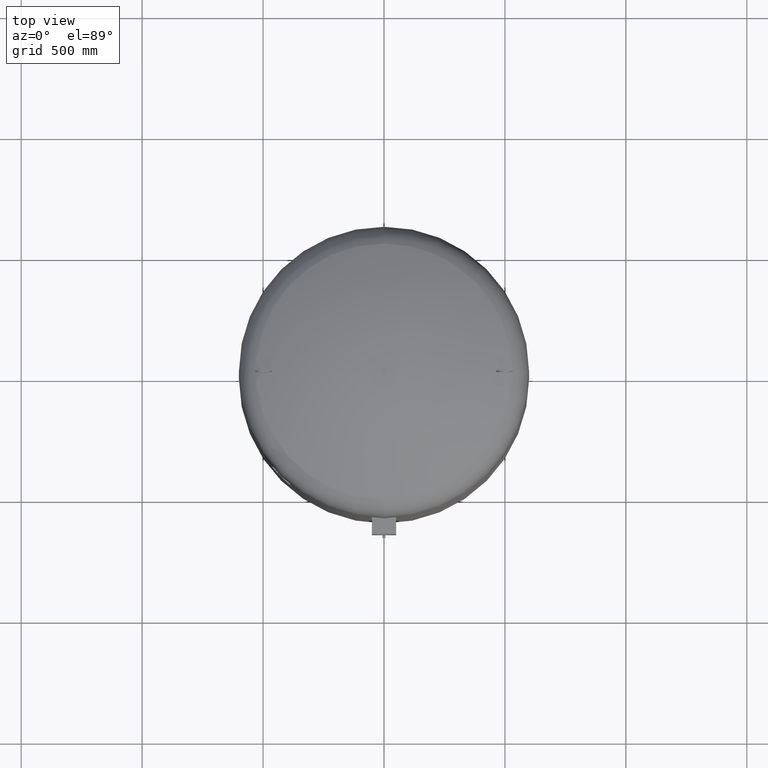
[diagram: clean part render]
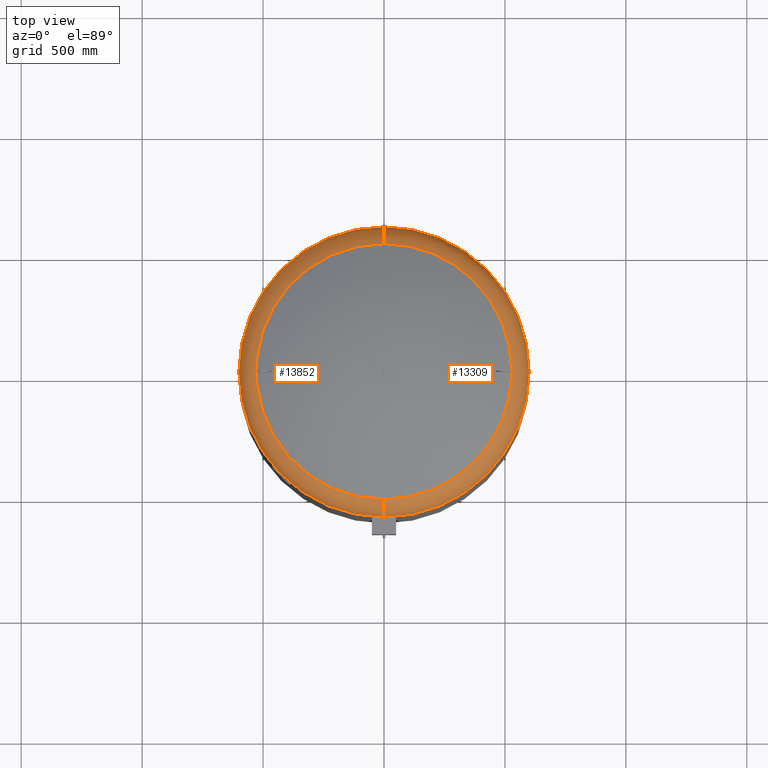
[diagram: same view with one multi-face feature highlighted, each face labeled with its STEP entity id]
A machine part, top view. The highlighted faces form ONE feature: a constant-radius fillet chain: 2 tangent blend faces with common blend radius 127 mm. The faces share edges in the B-rep.
Their STEP definitions:
[1] entity #13852 (Torus):
#13231=CARTESIAN_POINT('',(-599.999999999999890,3.010780E-014,2202.912457433727500));
#13232=VERTEX_POINT('',#13231);
#13239=CARTESIAN_POINT('',(1.156183E-013,600.0,2202.912457433727500));
#13240=VERTEX_POINT('',#13239);
#13241=CARTESIAN_POINT('',(6.604942E-015,-4.336858E-014,2202.912457433727500));
#13242=DIRECTION('',(0.0,0.0,-1.0));
#13243=DIRECTION('',(1.0,0.0,0.0));
#13244=AXIS2_PLACEMENT_3D('',#13241,#13242,#13243);
#13245=CIRCLE('',#13244,600.0);
#13246=EDGE_CURVE('',#13232,#13240,#13245,.T.);
#13263=CARTESIAN_POINT('',(4.214189E-014,-600.0,2202.912457433727500));
#13264=VERTEX_POINT('',#13263);
#13265=CARTESIAN_POINT('',(3.894773E-014,-528.621296296296240,2317.084570483804800));
#13266=VERTEX_POINT('',#13265);
#13267=CARTESIAN_POINT('',(4.214189E-014,-472.999999999999940,2202.912457433727500));
#13268=DIRECTION('',(-1.0,0.0,0.0));
#13269=DIRECTION('',(0.0,-1.0,0.0));
#13270=AXIS2_PLACEMENT_3D('',#13267,#13268,#13269);
#13271=CIRCLE('',#13270,127.000000000000010);
#13272=EDGE_CURVE('',#13264,#13266,#13271,.T.);
#13282=CARTESIAN_POINT('',(1.036830E-013,528.621296296296240,2317.084570483804800));
#13283=VERTEX_POINT('',#13282);
#13284=CARTESIAN_POINT('',(1.000658E-013,472.999999999999830,2202.912457433727500));
#13285=DIRECTION('',(1.0,0.0,0.0));
#13286=DIRECTION('',(0.0,1.0,0.0));
#13287=AXIS2_PLACEMENT_3D('',#13284,#13285,#13286);
#13288=CIRCLE('',#13287,127.000000000000010);
#13289=EDGE_CURVE('',#13240,#13283,#13288,.T.);
#13824=CARTESIAN_POINT('',(3.410787E-015,-2.239550E-014,2317.084570483804800));
#13825=DIRECTION('',(0.0,0.0,-1.0));
#13826=DIRECTION('',(1.0,0.0,0.0));
#13827=AXIS2_PLACEMENT_3D('',#13824,#13825,#13826);
#13828=CIRCLE('',#13827,528.621296296296240);
#13829=EDGE_CURVE('',#13266,#13283,#13828,.T.);
#13834=CARTESIAN_POINT('',(4.214189E-014,-4.336858E-014,2202.912457433727500));
#13835=DIRECTION('',(2.797667E-017,-1.836970E-016,-1.0));
#13836=DIRECTION('',(0.0,-1.0,0.0));
#13837=AXIS2_PLACEMENT_3D('',#13834,#13835,#13836);
#13838=TOROIDAL_SURFACE('',#13837,472.999999999999890,127.000000000000010);
#13839=ORIENTED_EDGE('',*,*,#13272,.T.);
#13840=ORIENTED_EDGE('',*,*,#13829,.T.);
#13841=ORIENTED_EDGE('',*,*,#13289,.F.);
#13842=ORIENTED_EDGE('',*,*,#13246,.F.);
#13843=CARTESIAN_POINT('',(6.604942E-015,-4.336858E-014,2202.912457433727500));
#13844=DIRECTION('',(0.0,0.0,-1.0));
#13845=DIRECTION('',(1.0,0.0,0.0));
#13846=AXIS2_PLACEMENT_3D('',#13843,#13844,#13845);
#13847=CIRCLE('',#13846,600.0);
#13848=EDGE_CURVE('',#13264,#13232,#13847,.T.);
#13849=ORIENTED_EDGE('',*,*,#13848,.F.);
#13850=EDGE_LOOP('',(#13839,#13840,#13841,#13842,#13849));
#13851=FACE_OUTER_BOUND('',#13850,.T.);
#13852=ADVANCED_FACE('',(#13851),#13838,.T.);
[2] entity #13309 (Torus):
#13214=CARTESIAN_POINT('',(600.0,-4.336858E-014,2202.912457433727900));
#13215=VERTEX_POINT('',#13214);
#13239=CARTESIAN_POINT('',(1.156183E-013,600.0,2202.912457433727500));
#13240=VERTEX_POINT('',#13239);
#13248=CARTESIAN_POINT('',(6.604942E-015,-4.336858E-014,2202.912457433727500));
#13249=DIRECTION('',(0.0,0.0,-1.0));
#13250=DIRECTION('',(1.0,0.0,0.0));
#13251=AXIS2_PLACEMENT_3D('',#13248,#13249,#13250);
#13252=CIRCLE('',#13251,600.0);
#13253=EDGE_CURVE('',#13240,#13215,#13252,.T.);
#13258=CARTESIAN_POINT('',(4.214189E-014,-4.336858E-014,2202.912457433727500));
#13259=DIRECTION('',(2.797667E-017,-1.836970E-016,-1.0));
#13260=DIRECTION('',(0.0,-1.0,0.0));
#13261=AXIS2_PLACEMENT_3D('',#13258,#13259,#13260);
#13262=TOROIDAL_SURFACE('',#13261,472.999999999999890,127.000000000000010);
#13263=CARTESIAN_POINT('',(4.214189E-014,-600.0,2202.912457433727500));
#13264=VERTEX_POINT('',#13263);
#13265=CARTESIAN_POINT('',(3.894773E-014,-528.621296296296240,2317.084570483804800));
#13266=VERTEX_POINT('',#13265);
#13267=CARTESIAN_POINT('',(4.214189E-014,-472.999999999999940,2202.912457433727500));
#13268=DIRECTION('',(-1.0,0.0,0.0));
#13269=DIRECTION('',(0.0,-1.0,0.0));
#13270=AXIS2_PLACEMENT_3D('',#13267,#13268,#13269);
#13271=CIRCLE('',#13270,127.000000000000010);
#13272=EDGE_CURVE('',#13264,#13266,#13271,.T.);
#13273=ORIENTED_EDGE('',*,*,#13272,.F.);
#13274=CARTESIAN_POINT('',(6.604942E-015,-4.336858E-014,2202.912457433727500));
#13275=DIRECTION('',(0.0,0.0,-1.0));
#13276=DIRECTION('',(1.0,0.0,0.0));
#13277=AXIS2_PLACEMENT_3D('',#13274,#13275,#13276);
#13278=CIRCLE('',#13277,600.0);
#13279=EDGE_CURVE('',#13215,#13264,#13278,.T.);
#13280=ORIENTED_EDGE('',*,*,#13279,.F.);
#13281=ORIENTED_EDGE('',*,*,#13253,.F.);
#13282=CARTESIAN_POINT('',(1.036830E-013,528.621296296296240,2317.084570483804800));
#13283=VERTEX_POINT('',#13282);
#13284=CARTESIAN_POINT('',(1.000658E-013,472.999999999999830,2202.912457433727500));
#13285=DIRECTION('',(1.0,0.0,0.0));
#13286=DIRECTION('',(0.0,1.0,0.0));
#13287=AXIS2_PLACEMENT_3D('',#13284,#13285,#13286);
#13288=CIRCLE('',#13287,127.000000000000010);
#13289=EDGE_CURVE('',#13240,#13283,#13288,.T.);
#13290=ORIENTED_EDGE('',*,*,#13289,.T.);
#13291=CARTESIAN_POINT('',(528.621296296296240,-2.239550E-014,2317.084570483804800));
#13292=VERTEX_POINT('',#13291);
#13293=CARTESIAN_POINT('',(3.410787E-015,-2.239550E-014,2317.084570483804800));
#13294=DIRECTION('',(0.0,0.0,-1.0));
#13295=DIRECTION('',(1.0,0.0,0.0));
#13296=AXIS2_PLACEMENT_3D('',#13293,#13294,#13295);
#13297=CIRCLE('',#13296,528.621296296296240);
#13298=EDGE_CURVE('',#13283,#13292,#13297,.T.);
#13299=ORIENTED_EDGE('',*,*,#13298,.T.);
#13300=CARTESIAN_POINT('',(3.410787E-015,-2.239550E-014,2317.084570483804800));
#13301=DIRECTION('',(0.0,0.0,-1.0));
#13302=DIRECTION('',(1.0,0.0,0.0));
#13303=AXIS2_PLACEMENT_3D('',#13300,#13301,#13302);
#13304=CIRCLE('',#13303,528.621296296296240);
#13305=EDGE_CURVE('',#13292,#13266,#13304,.T.);
#13306=ORIENTED_EDGE('',*,*,#13305,.T.);
#13307=EDGE_LOOP('',(#13273,#13280,#13281,#13290,#13299,#13306));
#13308=FACE_OUTER_BOUND('',#13307,.T.);
#13309=ADVANCED_FACE('',(#13308),#13262,.T.);